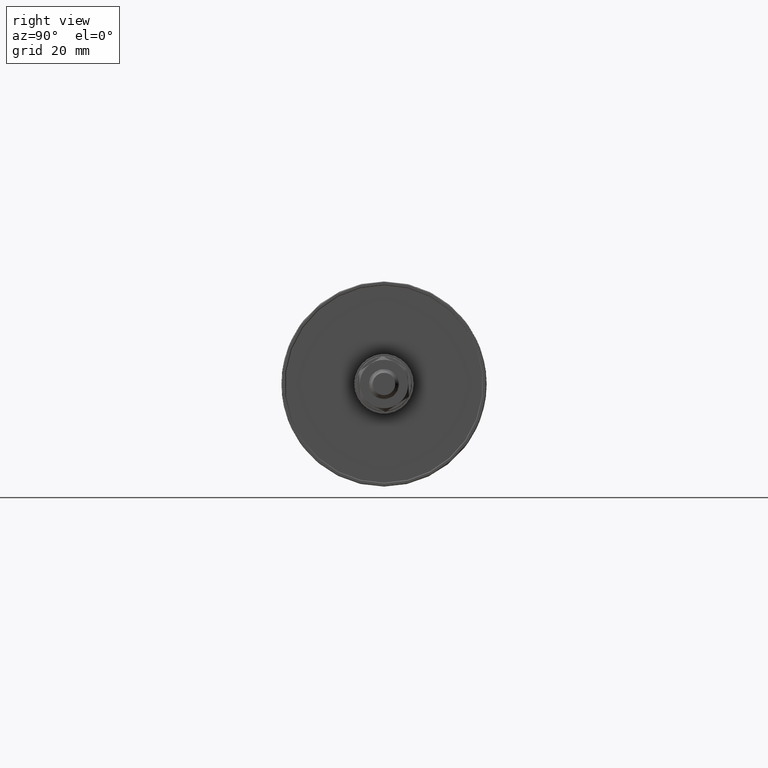
[diagram: clean part render]
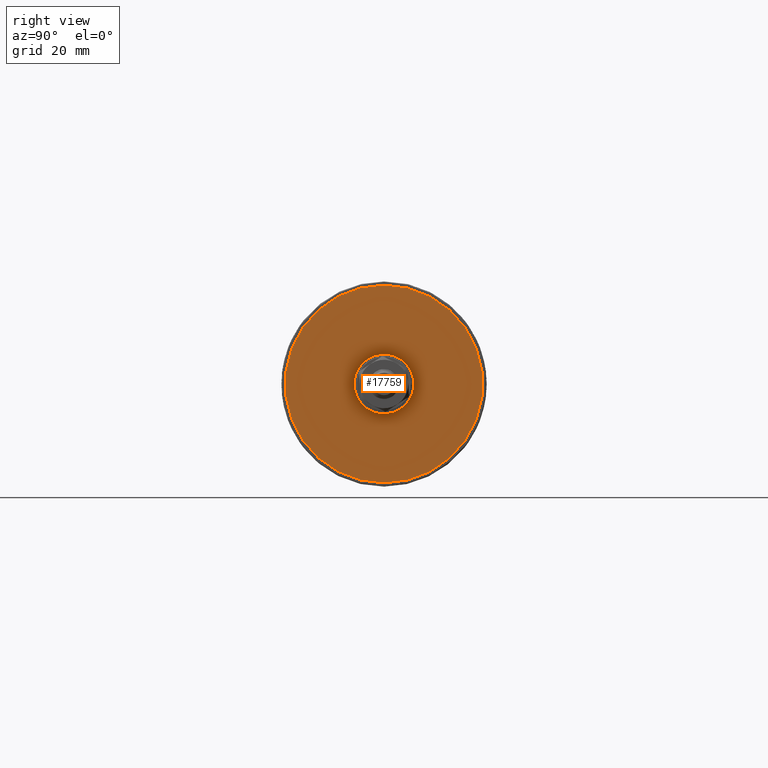
[diagram: same view with one face highlighted and labeled with its STEP entity id]
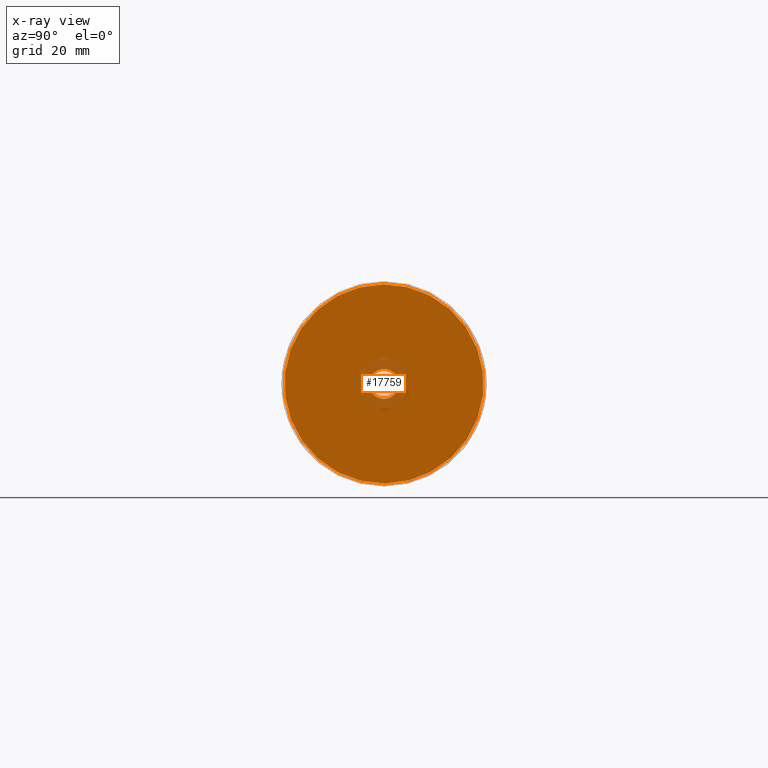
[diagram: x-ray of the same camera — body ghosted, the highlighted face saturated]
A machine part, right view. The second image highlights one B-rep face of the part: STEP entity #17759.
The next image is the same camera in x-ray: the body ghosted, the highlighted face saturated — about 4% of this face is hidden behind the body in this view.
In plain terms, the highlighted planar face has unit normal (1, -0, -0).
Its self-contained STEP definition (entity closure, byte-faithful):
#705 = PLANE ( 'NONE',  #1249 ) ;
#1066 = ORIENTED_EDGE ( 'NONE', *, *, #6333, .T. ) ;
#1249 = AXIS2_PLACEMENT_3D ( 'NONE', #8540, #10223, #12534 ) ;
#1640 = VERTEX_POINT ( 'NONE', #23063 ) ;
#2380 = CARTESIAN_POINT ( 'NONE',  ( -3.999999999999999112, -4.898587196589412829E-16, 0.000000000000000000 ) ) ;
#2391 = DIRECTION ( 'NONE',  ( -1.299418334065024133E-16, 1.000000000000000000, 0.000000000000000000 ) ) ;
#2652 = CARTESIAN_POINT ( 'NONE',  ( -3.999999999999996447, -4.898587196589409870E-16, 0.000000000000000000 ) ) ;
#2783 = DIRECTION ( 'NONE',  ( 1.000000000000000000, 1.224646799147353454E-16, -0.000000000000000000 ) ) ;
#3063 = CIRCLE ( 'NONE', #13321, 4.000000000000000888 ) ;
#3360 = EDGE_LOOP ( 'NONE', ( #1066, #3589 ) ) ;
#3589 = ORIENTED_EDGE ( 'NONE', *, *, #17355, .T. ) ;
#4121 = AXIS2_PLACEMENT_3D ( 'NONE', #5637, #23327, #17546 ) ;
#4438 = DIRECTION ( 'NONE',  ( 1.000000000000000000, 1.224646799147353454E-16, -0.000000000000000000 ) ) ;
#4581 = CARTESIAN_POINT ( 'NONE',  ( -4.000000000000000000, 4.000000000000000000, 0.000000000000000000 ) ) ;
#5023 = AXIS2_PLACEMENT_3D ( 'NONE', #2652, #2783, #16114 ) ;
#5637 = CARTESIAN_POINT ( 'NONE',  ( -3.999999999999999112, -4.898587196589412829E-16, 0.000000000000000000 ) ) ;
#6160 = CIRCLE ( 'NONE', #4121, 4.000000000000000888 ) ;
#6222 = ORIENTED_EDGE ( 'NONE', *, *, #23613, .F. ) ;
#6333 = EDGE_CURVE ( 'NONE', #18759, #13513, #3063, .T. ) ;
#6524 = ORIENTED_EDGE ( 'NONE', *, *, #21643, .F. ) ;
#8540 = CARTESIAN_POINT ( 'NONE',  ( -4.000000000000001776, 26.69999999999999929, 0.000000000000000000 ) ) ;
#9339 = EDGE_LOOP ( 'NONE', ( #6222, #6524 ) ) ;
#10223 = DIRECTION ( 'NONE',  ( -1.000000000000000000, -1.224646799147353454E-16, 0.000000000000000000 ) ) ;
#10361 = CARTESIAN_POINT ( 'NONE',  ( -3.999999999999996447, -4.898587196589409870E-16, 0.000000000000000000 ) ) ;
#11467 = VERTEX_POINT ( 'NONE', #13530 ) ;
#11603 = CIRCLE ( 'NONE', #5023, 26.69999999999999929 ) ;
#12165 = DIRECTION ( 'NONE',  ( 1.000000000000000000, 1.224646799147353454E-16, -0.000000000000000000 ) ) ;
#12425 = CARTESIAN_POINT ( 'NONE',  ( -3.999999999999998224, -4.000000000000001776, 4.898587196589414801E-16 ) ) ;
#12534 = DIRECTION ( 'NONE',  ( 1.224646799147353454E-16, -1.000000000000000000, 0.000000000000000000 ) ) ;
#13321 = AXIS2_PLACEMENT_3D ( 'NONE', #2380, #4438, #19944 ) ;
#13513 = VERTEX_POINT ( 'NONE', #12425 ) ;
#13530 = CARTESIAN_POINT ( 'NONE',  ( -4.000000000000000000, 26.69999999999999929, 3.269806953723432873E-15 ) ) ;
#16087 = CIRCLE ( 'NONE', #22658, 26.69999999999999929 ) ;
#16100 = FACE_BOUND ( 'NONE', #3360, .T. ) ;
#16114 = DIRECTION ( 'NONE',  ( -1.299418334065024133E-16, 1.000000000000000000, 0.000000000000000000 ) ) ;
#17355 = EDGE_CURVE ( 'NONE', #13513, #18759, #6160, .T. ) ;
#17546 = DIRECTION ( 'NONE',  ( -2.168404344971008375E-16, 1.000000000000000000, 0.000000000000000000 ) ) ;
#17759 = ADVANCED_FACE ( 'NONE', ( #16100, #18273 ), #705, .T. ) ;
#18273 = FACE_OUTER_BOUND ( 'NONE', #9339, .T. ) ;
#18759 = VERTEX_POINT ( 'NONE', #4581 ) ;
#19944 = DIRECTION ( 'NONE',  ( -2.168404344971008375E-16, 1.000000000000000000, 0.000000000000000000 ) ) ;
#21643 = EDGE_CURVE ( 'NONE', #11467, #1640, #16087, .T. ) ;
#22658 = AXIS2_PLACEMENT_3D ( 'NONE', #10361, #12165, #2391 ) ;
#23063 = CARTESIAN_POINT ( 'NONE',  ( -3.999999999999993339, -26.69999999999999929, 0.000000000000000000 ) ) ;
#23327 = DIRECTION ( 'NONE',  ( 1.000000000000000000, 1.224646799147353454E-16, -0.000000000000000000 ) ) ;
#23613 = EDGE_CURVE ( 'NONE', #1640, #11467, #11603, .T. ) ;